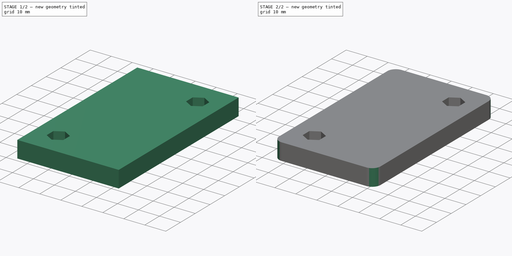
[diagram: build sequence overview — one tinted view per stage of 2, left to right]
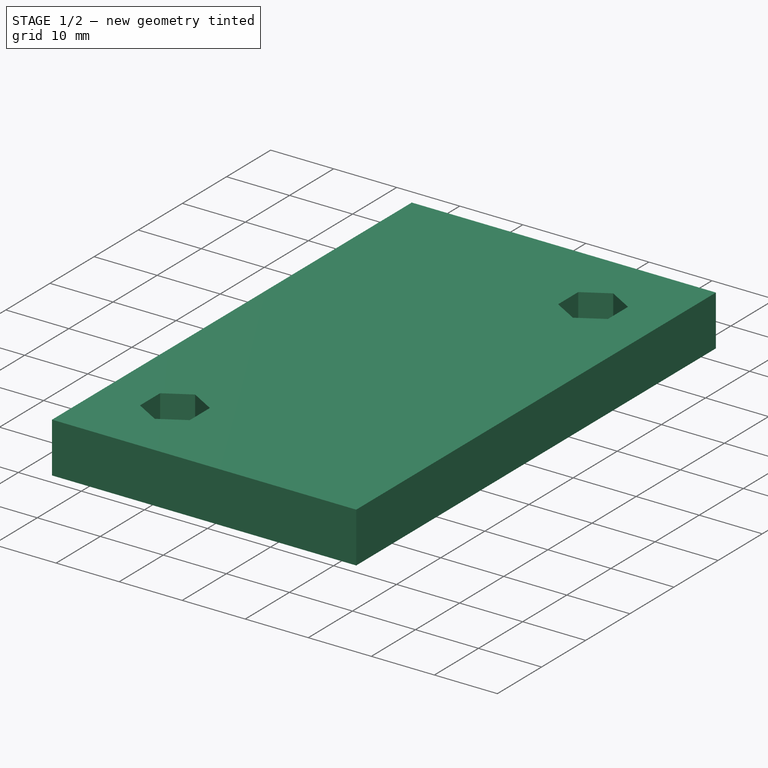
[diagram: stage 1 of 2 — iso view after this stage's code; geometry added in this stage tinted green]
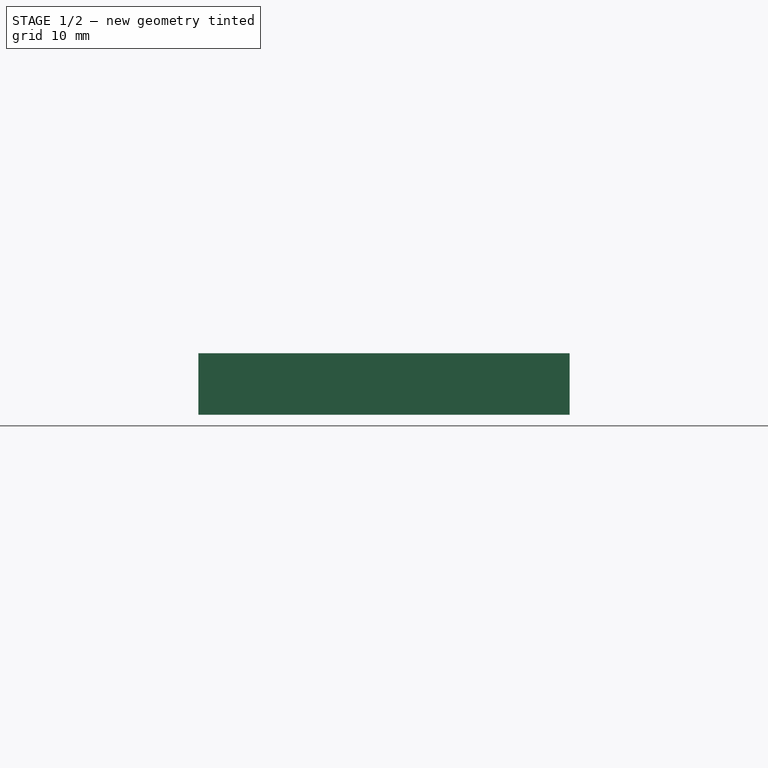
[diagram: stage 1 of 2 — front view after this stage's code; geometry added in this stage tinted green]
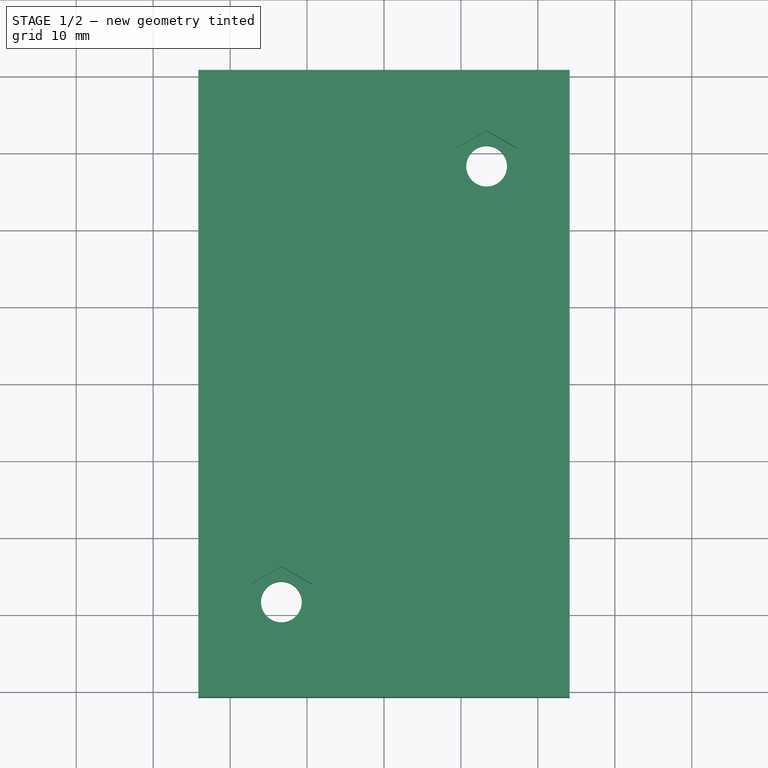
[diagram: stage 1 of 2 — top view after this stage's code; geometry added in this stage tinted green]
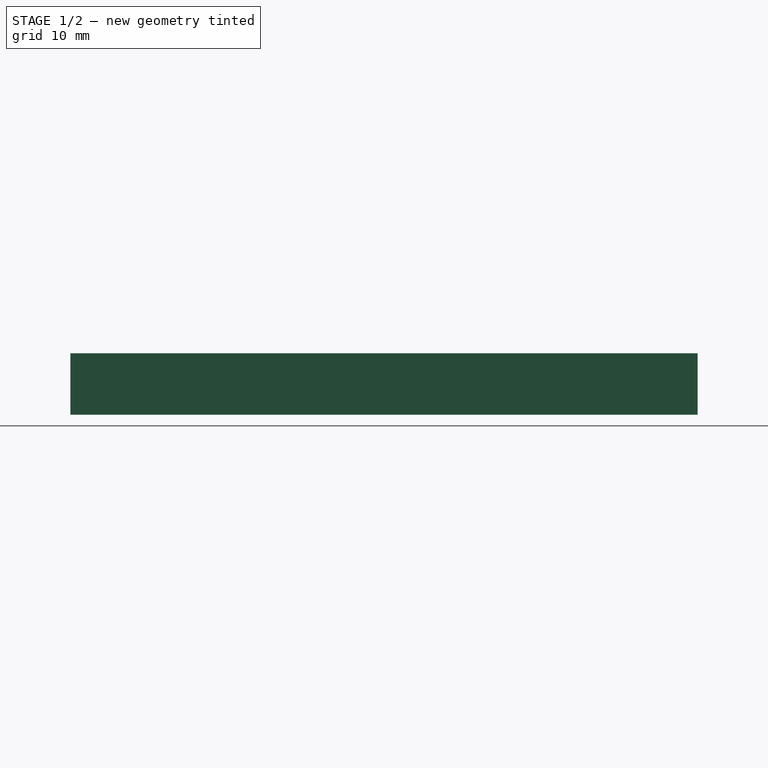
[diagram: stage 1 of 2 — right view after this stage's code; geometry added in this stage tinted green]
FCSTD DOCUMENT  (FreeCAD 0.20R29410 (Git))
Label: bss 285 mount
License: All rights reserved
LicenseURL: http://en.wikipedia.org/wiki/All_rights_reserved
objects: Sketcher::SketchObject×2, PartDesign::Pad×1, PartDesign::Pocket×1, PartDesign::Fillet×1, PartDesign::Body×1
note: 9 computed .brp shape members not serialized (recipe doc carries the construction recipe); baked Part::Feature solids carry a one-line shape summary decoded from their .brp

FEATURE [Sketcher::SketchObject] Sketch
  FullyConstrained = true
  MapMode = 5
  Support = -> [XY_Plane]
  sketch-geometry (12):
    g0: LineSegment StartX=-24.125 StartY=-40.75 StartZ=0 EndX=-24.125 EndY=40.75 EndZ=0
    g1: LineSegment StartX=-24.125 StartY=40.75 StartZ=0 EndX=24.125 EndY=40.75 EndZ=0
    g2: LineSegment StartX=24.125 StartY=40.75 StartZ=0 EndX=24.125 EndY=-40.75 EndZ=0
    g3: LineSegment StartX=24.125 StartY=-40.75 StartZ=0 EndX=-24.125 EndY=-40.75 EndZ=0
    g4: GeomPoint X=0 Y=0 Z=0
    g5: LineSegment StartX=-13.335 StartY=-28.32 StartZ=0 EndX=-13.335 EndY=28.32 EndZ=0
    g6: LineSegment StartX=-13.335 StartY=28.32 StartZ=0 EndX=13.335 EndY=28.32 EndZ=0
    g7: LineSegment StartX=13.335 StartY=28.32 StartZ=0 EndX=13.335 EndY=-28.32 EndZ=0
    g8: LineSegment StartX=13.335 StartY=-28.32 StartZ=0 EndX=-13.335 EndY=-28.32 EndZ=0
    g9: GeomPoint X=0 Y=0 Z=0
    g10: Circle CenterX=13.335 CenterY=28.32 CenterZ=0 NormalX=0 NormalY=0 NormalZ=1 AngleXU=0 Radius=2.65
    g11: Circle CenterX=-13.335 CenterY=-28.32 CenterZ=0 NormalX=0 NormalY=0 NormalZ=1 AngleXU=0 Radius=2.65
  constraints (28):
    c: Coincident(g0,g1)
    c: Coincident(g1,g2)
    c: Coincident(g2,g3)
    c: Coincident(g3,g0)
    c: Horizontal(g1)
    c: Horizontal(g3)
    c: Vertical(g0)
    c: Vertical(g2)
    c: Symmetric(g1,g0,g4)
    c: Coincident(g4,g-1)
    c: DistanceY(g0,g0) = 81.5
    c: DistanceX(g1,g1) = 48.25
    c: Coincident(g5,g6)
    c: Coincident(g6,g7)
    c: Coincident(g7,g8)
    c: Coincident(g8,g5)
    c: Horizontal(g6)
    c: Horizontal(g8)
    c: Vertical(g5)
    c: Vertical(g7)
    c: Symmetric(g6,g5,g9)
    c: Coincident(g9,g4)
    c: DistanceX(g6,g6) = 26.67
    c: DistanceY(g7,g7) = 56.64
    c: Coincident(g10,g6)
    c: Coincident(g11,g5)
    c: Diameter(g10) = 5.3
    c: Diameter(g11) = 5.3
FEATURE [PartDesign::Pad] Pad
  Direction = (0,0,1)
  Length = 8
  Length2 = 10
  Profile = -> Sketch
  ReferenceAxis = -> Sketch [N_Axis]
  Type = 0
FEATURE [Sketcher::SketchObject] Sketch001
  ExternalGeometry = -> [Pad]
  FullyConstrained = true
  MapMode = 5
  Placement = pos=(0,0,8) rot=(0,0,1;0rad)
  Support = -> [Pad]
  sketch-geometry (14):
    g0: LineSegment StartX=17.285 StartY=26.0395 StartZ=0 EndX=17.285 EndY=30.6005 EndZ=0
    g1: LineSegment StartX=17.285 StartY=30.6005 StartZ=0 EndX=13.335 EndY=32.8811 EndZ=0
    g2: LineSegment StartX=13.335 StartY=32.8811 StartZ=0 EndX=9.385 EndY=30.6005 EndZ=0
    g3: LineSegment StartX=9.385 StartY=30.6005 StartZ=0 EndX=9.385 EndY=26.0395 EndZ=0
    g4: LineSegment StartX=9.385 StartY=26.0395 StartZ=0 EndX=13.335 EndY=23.7589 EndZ=0
    g5: LineSegment StartX=13.335 StartY=23.7589 StartZ=0 EndX=17.285 EndY=26.0395 EndZ=0
    g6: Circle CenterX=13.335 CenterY=28.32 CenterZ=0 NormalX=0 NormalY=0 NormalZ=1 AngleXU=0 Radius=4.56107
    g7: LineSegment StartX=-9.385 StartY=-26.0395 StartZ=0 EndX=-13.335 EndY=-23.7589 EndZ=0
    g8: LineSegment StartX=-13.335 StartY=-23.7589 StartZ=0 EndX=-17.285 EndY=-26.0395 EndZ=0
    g9: LineSegment StartX=-17.285 StartY=-26.0395 StartZ=0 EndX=-17.285 EndY=-30.6005 EndZ=0
    g10: LineSegment StartX=-17.285 StartY=-30.6005 StartZ=0 EndX=-13.335 EndY=-32.8811 EndZ=0
    g11: LineSegment StartX=-13.335 StartY=-32.8811 StartZ=0 EndX=-9.385 EndY=-30.6005 EndZ=0
    g12: LineSegment StartX=-9.385 StartY=-30.6005 StartZ=0 EndX=-9.385 EndY=-26.0395 EndZ=0
    g13: Circle CenterX=-13.335 CenterY=-28.32 CenterZ=0 NormalX=0 NormalY=0 NormalZ=1 AngleXU=0 Radius=4.56107
  constraints (32):
    c: Coincident(g0,g1)
    c: Coincident(g1,g2)
    c: Coincident(g2,g3)
    c: Coincident(g3,g4)
    c: Coincident(g4,g5)
    c: Coincident(g5,g0)
    c: Equal(g0, g1-g5) x5
    c: PointOnObject(g0,g6)
    c: PointOnObject(g1,g6)
    c: PointOnObject(g2,g6)
    c: PointOnObject(g3,g6)
    c: PointOnObject(g4,g6)
    c: PointOnObject(g5,g6)
    c: Coincident(g6,g-3)
    c: Coincident(g7,g8)
    c: Coincident(g8,g9)
    c: Coincident(g9,g10)
    c: Coincident(g10,g11)
    c: Coincident(g11,g12)
    c: Coincident(g12,g7)
    c: Equal(g7, g8-g12) x5
    c: PointOnObject(g7,g13)
    c: PointOnObject(g8,g13)
    c: PointOnObject(g9,g13)
    c: PointOnObject(g10,g13)
    c: PointOnObject(g11,g13)
    c: PointOnObject(g12,g13)
    c: Coincident(g13,g-4)
    c: Vertical(g9)
    c: Vertical(g3)
    c: DistanceX(g2,g0) = 7.9
    c: DistanceX(g8,g7) = 7.9
FEATURE [PartDesign::Pocket] Pocket
  BaseFeature = -> Pad
  Direction = (0,0,-1)
  Length = 4
  Length2 = 5
  Profile = -> Sketch001
  ReferenceAxis = -> Sketch001 [N_Axis]
  Type = 0
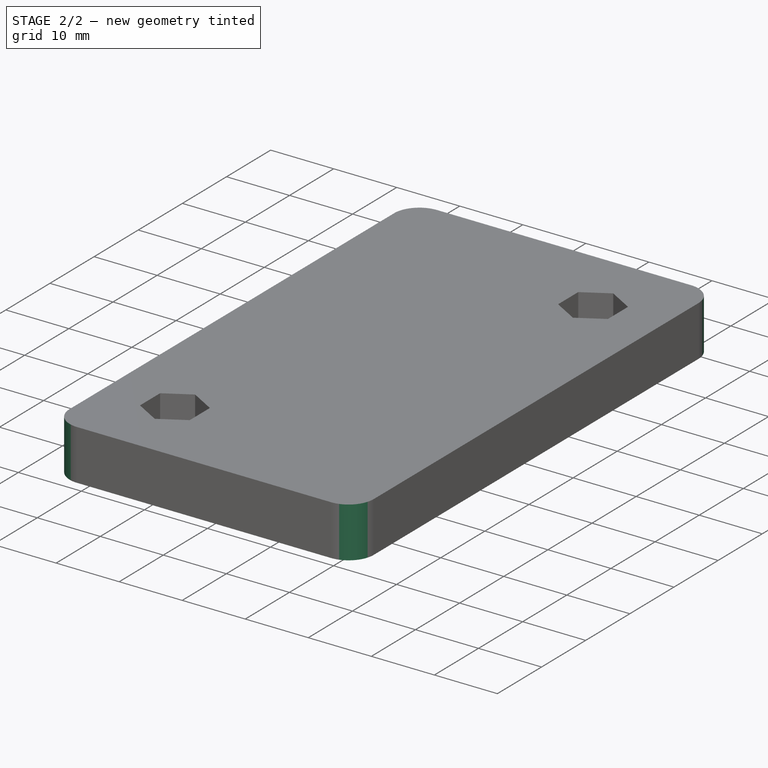
[diagram: stage 2 of 2 — iso view after this stage's code; geometry added in this stage tinted green]
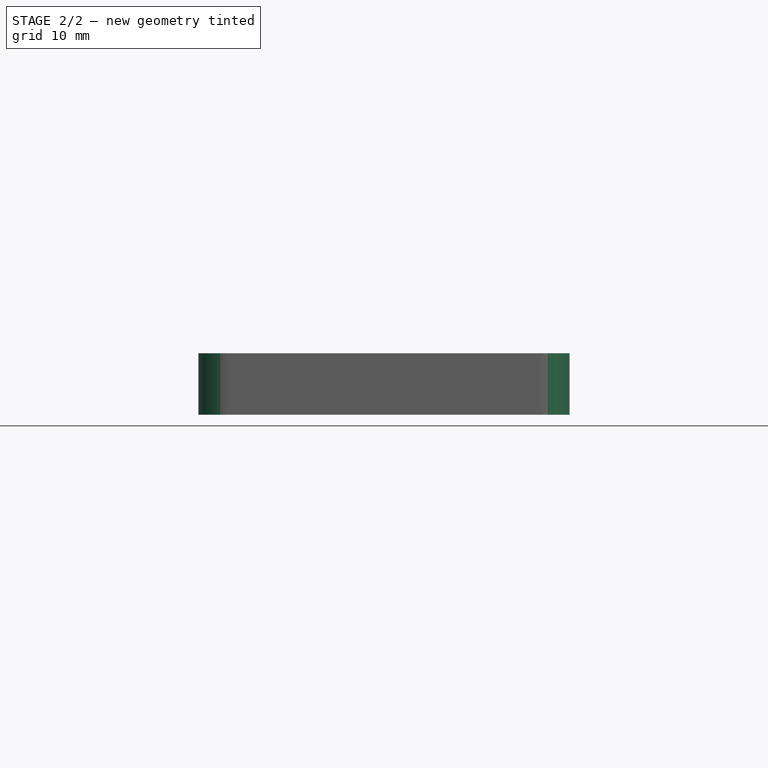
[diagram: stage 2 of 2 — front view after this stage's code; geometry added in this stage tinted green]
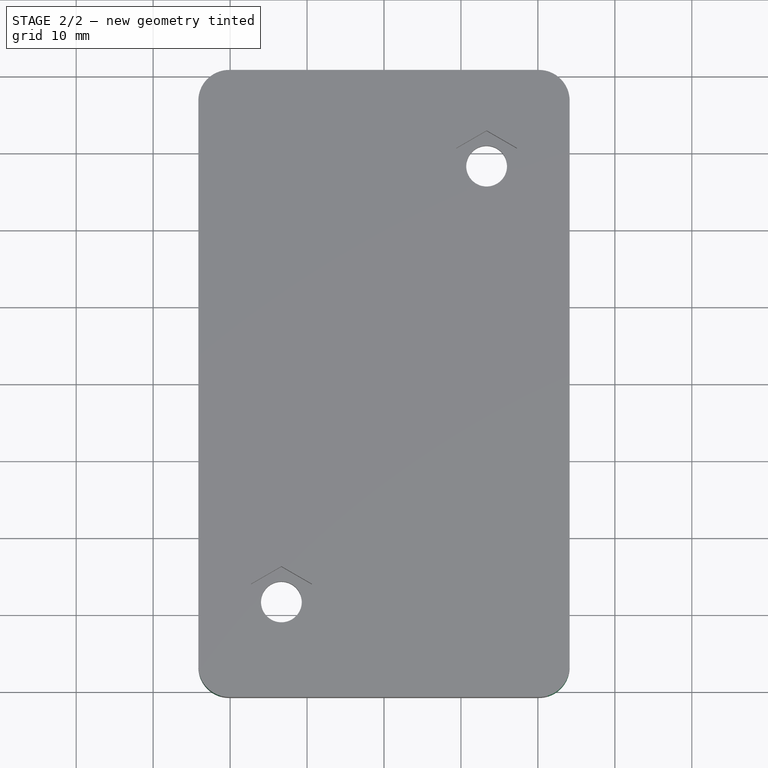
[diagram: stage 2 of 2 — top view after this stage's code; geometry added in this stage tinted green]
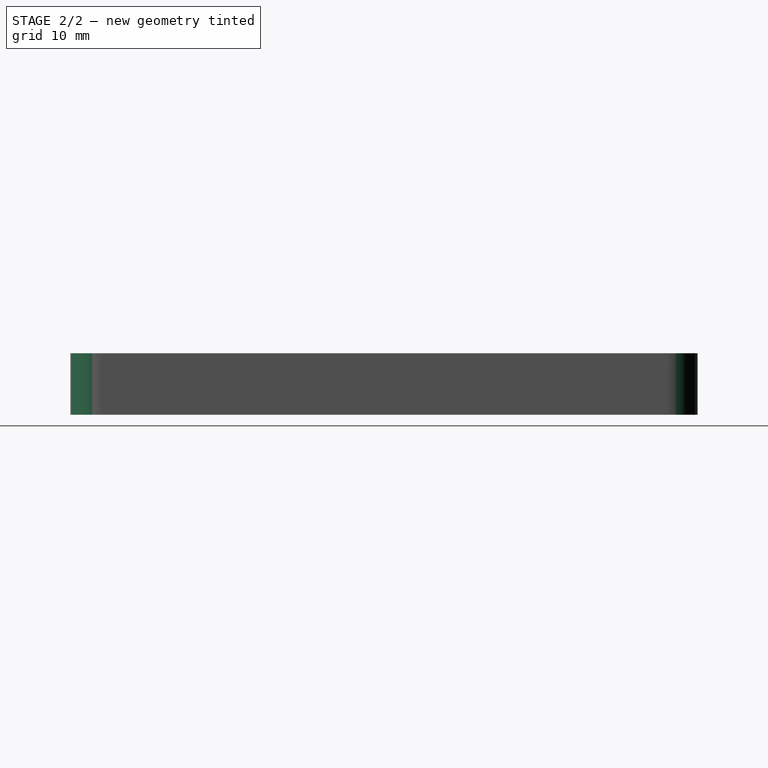
[diagram: stage 2 of 2 — right view after this stage's code; geometry added in this stage tinted green]
FEATURE [PartDesign::Fillet] Fillet
  Base = -> Pocket [Edge1,Edge5,Edge8,Edge2]
  BaseFeature = -> Pocket
  Radius = 4
  SupportTransform = false
  UseAllEdges = false
FEATURE [PartDesign::Body] Body
  Group = -> [Sketch,Pad,Sketch001,Pocket,Fillet]
  Origin = -> Origin
  Tip = -> Fillet
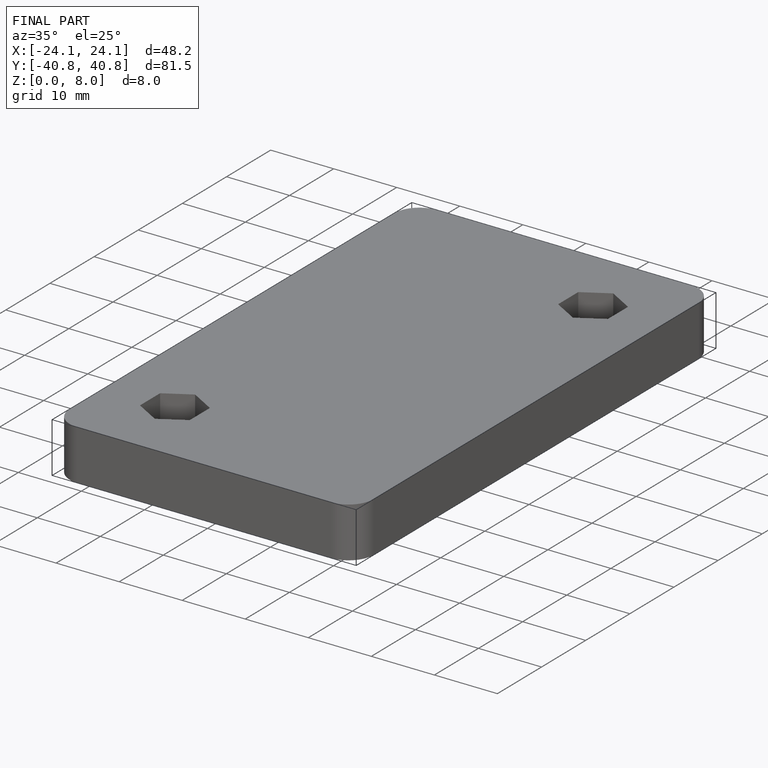
[diagram: finished part — iso view with bounding-box wireframe]
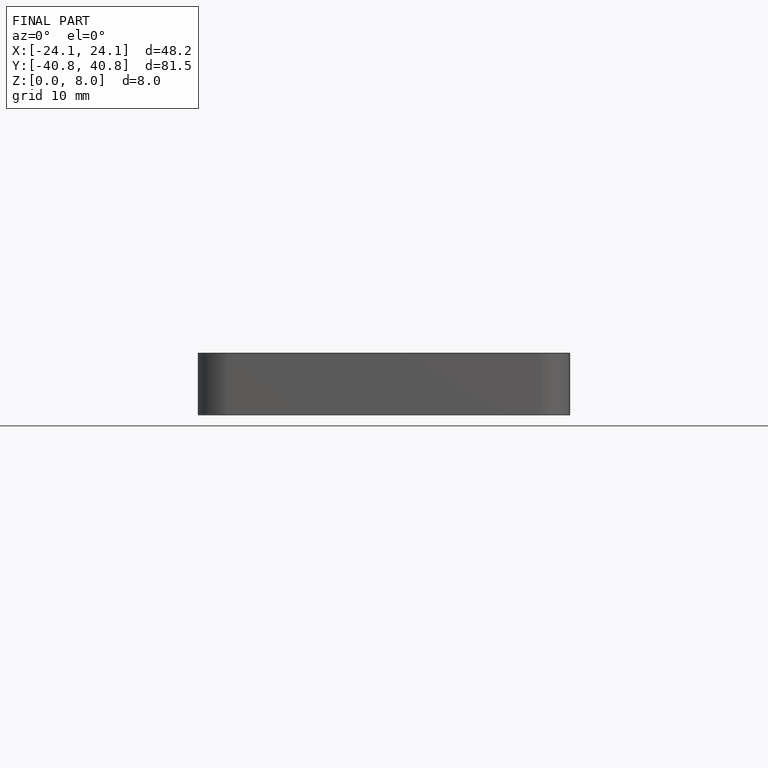
[diagram: finished part — front view with bounding-box wireframe]
